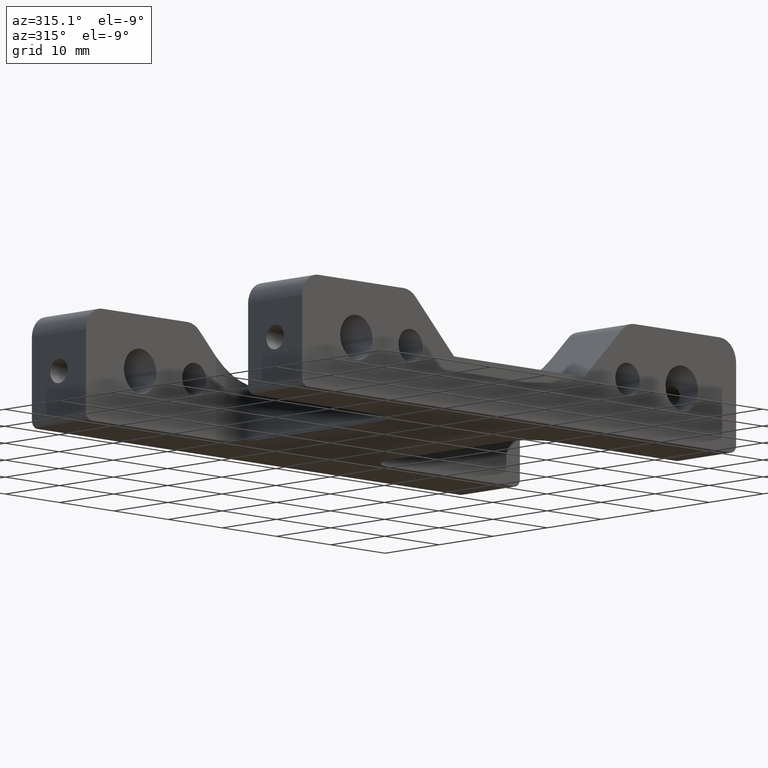
[diagram: clean part render]
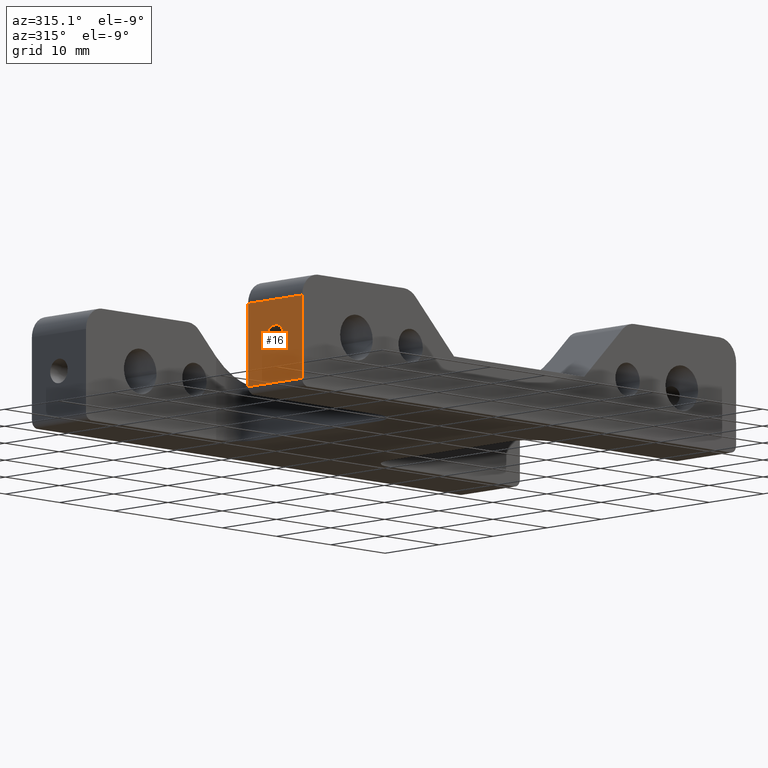
[diagram: same view with one face highlighted and labeled with its STEP entity id]
A machine part, auxiliary view. The second image highlights one B-rep face of the part: STEP entity #16.
In plain terms, the highlighted planar face has unit normal (-1, 0, 0).
Its self-contained STEP definition (entity closure, byte-faithful):
#16=ADVANCED_FACE('',(#98,#78),#1158,.T.);
#78=FACE_BOUND('',#162,.T.);
#98=FACE_OUTER_BOUND('',#161,.T.);
#161=EDGE_LOOP('',(#247,#248,#249,#250));
#162=EDGE_LOOP('',(#251,#252));
#247=ORIENTED_EDGE('',*,*,#621,.F.);
#248=ORIENTED_EDGE('',*,*,#622,.T.);
#249=ORIENTED_EDGE('',*,*,#623,.F.);
#250=ORIENTED_EDGE('',*,*,#624,.T.);
#251=ORIENTED_EDGE('',*,*,#759,.T.);
#252=ORIENTED_EDGE('',*,*,#795,.T.);
#621=EDGE_CURVE('',#999,#998,#914,.T.);
#622=EDGE_CURVE('',#999,#1000,#915,.T.);
#623=EDGE_CURVE('',#1001,#1000,#916,.T.);
#624=EDGE_CURVE('',#1001,#998,#917,.T.);
#759=EDGE_CURVE('',#1002,#1110,#872,.T.);
#795=EDGE_CURVE('',#1110,#1002,#903,.T.);
#872=(
BOUNDED_CURVE()
B_SPLINE_CURVE(2,(#2167,#2168,#2169,#2170,#2171),.UNSPECIFIED.,.F.,.F.)
B_SPLINE_CURVE_WITH_KNOTS((3,2,3),(3.14159265358979,4.71238898038468,6.28318530717959),
 .UNSPECIFIED.)
CURVE()
GEOMETRIC_REPRESENTATION_ITEM()
RATIONAL_B_SPLINE_CURVE((1.,0.707106781186548,1.,0.707106781186548,1.))
REPRESENTATION_ITEM('')
);
#903=(
BOUNDED_CURVE()
B_SPLINE_CURVE(2,(#2343,#2344,#2345,#2346,#2347),.UNSPECIFIED.,.F.,.F.)
B_SPLINE_CURVE_WITH_KNOTS((3,2,3),(6.28318530717959,7.85398163397449,9.42477796076938),
 .UNSPECIFIED.)
CURVE()
GEOMETRIC_REPRESENTATION_ITEM()
RATIONAL_B_SPLINE_CURVE((1.,0.707106781186548,1.,0.707106781186548,1.))
REPRESENTATION_ITEM('')
);
#914=B_SPLINE_CURVE_WITH_KNOTS('',1,(#1747,#1748),.UNSPECIFIED.,.F.,.F.,
(2,2),(-3.75,-2.75),.UNSPECIFIED.);
#915=B_SPLINE_CURVE_WITH_KNOTS('',1,(#1749,#1750),.UNSPECIFIED.,.F.,.F.,
(2,2),(0.1,1.2),.UNSPECIFIED.);
#916=B_SPLINE_CURVE_WITH_KNOTS('',1,(#1751,#1752),.UNSPECIFIED.,.F.,.F.,
(2,2),(2.75,3.75),.UNSPECIFIED.);
#917=B_SPLINE_CURVE_WITH_KNOTS('',1,(#1753,#1754),.UNSPECIFIED.,.F.,.F.,
(2,2),(-0.45,0.65),.UNSPECIFIED.);
#998=VERTEX_POINT('',#1620);
#999=VERTEX_POINT('',#1621);
#1000=VERTEX_POINT('',#1622);
#1001=VERTEX_POINT('',#1623);
#1002=VERTEX_POINT('',#1624);
#1110=VERTEX_POINT('',#1732);
#1158=PLANE('',#1200);
#1200=AXIS2_PLACEMENT_3D('',#1250,#1225,$);
#1225=DIRECTION('',(-1.,0.,0.));
#1250=CARTESIAN_POINT('',(-39.9999999881972,-14.9899999973046,0.989999999999999));
#1620=CARTESIAN_POINT('',(-39.9999999881972,-14.9999999973046,1.));
#1621=CARTESIAN_POINT('',(-39.9999999881972,-24.9999999973046,1.));
#1622=CARTESIAN_POINT('',(-39.9999999881972,-24.9999999973046,12.));
#1623=CARTESIAN_POINT('',(-39.9999999881972,-14.9999999973046,12.));
#1624=CARTESIAN_POINT('',(-39.9999999881972,-19.9999999973046,5.379));
#1732=CARTESIAN_POINT('',(-39.9999999881972,-19.9999999973046,8.621));
#1747=CARTESIAN_POINT('',(-39.9999999881972,-24.9999999973046,1.));
#1748=CARTESIAN_POINT('',(-39.9999999881972,-14.9999999973046,1.));
#1749=CARTESIAN_POINT('',(-39.9999999881972,-24.9999999973046,1.));
#1750=CARTESIAN_POINT('',(-39.9999999881972,-24.9999999973046,12.));
#1751=CARTESIAN_POINT('',(-39.9999999881972,-14.9999999973046,12.));
#1752=CARTESIAN_POINT('',(-39.9999999881972,-24.9999999973046,12.));
#1753=CARTESIAN_POINT('',(-39.9999999881972,-14.9999999973046,12.));
#1754=CARTESIAN_POINT('',(-39.9999999881972,-14.9999999973046,1.));
#2167=CARTESIAN_POINT('',(-39.9999999881972,-19.9999999973046,5.379));
#2168=CARTESIAN_POINT('',(-39.9999999881972,-18.3789999973046,5.379));
#2169=CARTESIAN_POINT('',(-39.9999999881972,-18.3789999973046,7.));
#2170=CARTESIAN_POINT('',(-39.9999999881972,-18.3789999973046,8.621));
#2171=CARTESIAN_POINT('',(-39.9999999881972,-19.9999999973046,8.621));
#2343=CARTESIAN_POINT('',(-39.9999999881972,-19.9999999973046,8.621));
#2344=CARTESIAN_POINT('',(-39.9999999881972,-21.6209999973046,8.621));
#2345=CARTESIAN_POINT('',(-39.9999999881972,-21.6209999973046,7.));
#2346=CARTESIAN_POINT('',(-39.9999999881972,-21.6209999973046,5.379));
#2347=CARTESIAN_POINT('',(-39.9999999881972,-19.9999999973046,5.379));